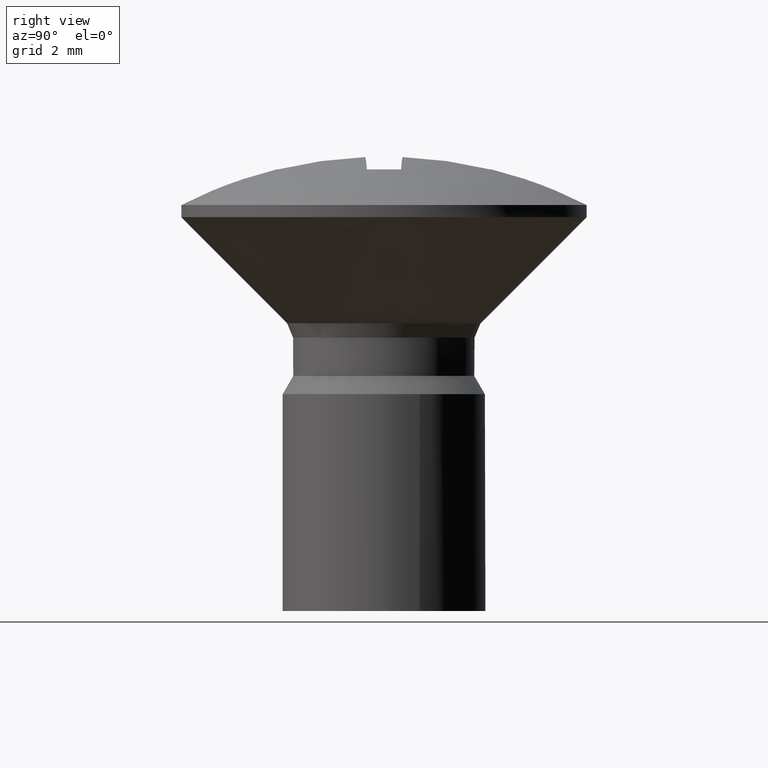
[diagram: clean part render]
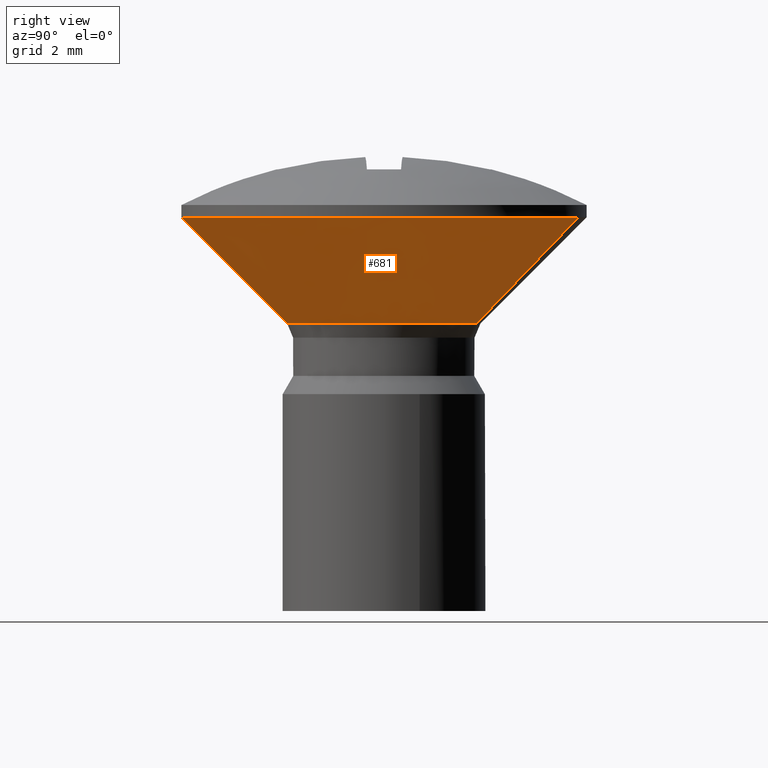
[diagram: same view with one face highlighted and labeled with its STEP entity id]
A machine part, right view. The second image highlights one B-rep face of the part: STEP entity #681.
In plain terms, the highlighted face is a freeform B-spline surface patch.
Its self-contained STEP definition (entity closure, byte-faithful):
#564=CARTESIAN_POINT('',(-0.911770694464833,-2.134477389025494,-2.978837500011659));
#565=CARTESIAN_POINT('',(-0.788129322014859,-2.187292462449518,-2.978837500011660));
#566=CARTESIAN_POINT('',(-0.659216655975181,-2.225478133802009,-2.978837500011660));
#567=CARTESIAN_POINT('',(1.566261477826829,-2.884694789777191,-2.978837500011660));
#568=CARTESIAN_POINT('',(2.225478133802009,-0.659216655975181,-2.978837500011660));
#569=CARTESIAN_POINT('',(2.884694789777191,1.566261477826829,-2.978837500011660));
#570=CARTESIAN_POINT('',(0.659216655975181,2.225478133802009,-2.978837500011660));
#571=CARTESIAN_POINT('',(-1.990434519983686,-4.659655660170878,-0.233029062499713));
#572=CARTESIAN_POINT('',(-1.720520102557671,-4.774953230005968,-0.233029062499713));
#573=CARTESIAN_POINT('',(-1.439098225208224,-4.858314187854438,-0.233029062499713));
#574=CARTESIAN_POINT('',(3.419215962646214,-6.297412413062659,-0.233029062499713));
#575=CARTESIAN_POINT('',(4.858314187854438,-1.439098225208224,-0.233029062499713));
#576=CARTESIAN_POINT('',(6.297412413062659,3.419215962646214,-0.233029062499713));
#577=CARTESIAN_POINT('',(1.439098225208224,4.858314187854438,-0.233029062499713));
#585=(BOUNDED_SURFACE()B_SPLINE_SURFACE(2,1,((#564,#571),(#565,#572),(#566,#573),(#567,#574),(#568,#575),(#569,#576),(#570,#577)),.UNSPECIFIED.,.F.,.F.,.U.)B_SPLINE_SURFACE_WITH_KNOTS((3,2,2,3),(2,2),(0.0,0.671618926043262,9.066855501584019,17.462092077124780),(0.0,3.883233823124686),.UNSPECIFIED.)GEOMETRIC_REPRESENTATION_ITEM()RATIONAL_B_SPLINE_SURFACE(((0.956886118190660,0.956886118190660),(0.976568542494924,0.976568542494924),(1.0,1.0),(0.707106781186548,0.707106781186548),(1.0,1.0),(0.707106781186548,0.707106781186548),(1.0,1.0)))REPRESENTATION_ITEM('')SURFACE());
#586=CARTESIAN_POINT('',(0.305241107756688,-4.990674089352352,-0.300000000000051));
#587=VERTEX_POINT('',#586);
#588=CARTESIAN_POINT('',(-1.964125646197499,-4.598065946238224,-0.299999999999369));
#589=VERTEX_POINT('',#588);
#590=CARTESIAN_POINT('',(0.305241107756688,-4.990674089352352,-0.300000000000051));
#591=CARTESIAN_POINT('',(0.152763019305179,-5.0,-0.300000000000004));
#592=CARTESIAN_POINT('',(0.0,-5.0,-0.300000000000004));
#593=CARTESIAN_POINT('',(-1.023188242926425,-5.0,-0.300000000000005));
#594=CARTESIAN_POINT('',(-1.964125646197498,-4.598065946238224,-0.299999999999369));
#602=(BOUNDED_CURVE()B_SPLINE_CURVE(2,(#590,#591,#592,#593,#594),.UNSPECIFIED.,.F.,.U.)B_SPLINE_CURVE_WITH_KNOTS((3,2,3),(0.739333017211535,0.750000000000000,0.816696862373133),.UNSPECIFIED.)CURVE()GEOMETRIC_REPRESENTATION_ITEM()RATIONAL_B_SPLINE_CURVE((0.976072159483476,0.987502852304236,1.0,0.921859765179100,0.885413198259432))REPRESENTATION_ITEM(''));
#603=EDGE_CURVE('',#587,#589,#602,.T.);
#604=ORIENTED_EDGE('',*,*,#603,.T.);
#605=CARTESIAN_POINT('',(-0.937436761249842,-2.194563757591395,-2.913501506924783));
#606=VERTEX_POINT('',#605);
#607=CARTESIAN_POINT('',(-0.937436761249842,-2.194563757591395,-2.913501506924783));
#608=CARTESIAN_POINT('',(-1.964125646197499,-4.598065946238224,-0.299999999999369));
#609=QUASI_UNIFORM_CURVE('',1,(#607,#608),.UNSPECIFIED.,.F.,.U.);
#610=EDGE_CURVE('',#606,#589,#609,.T.);
#611=ORIENTED_EDGE('',*,*,#610,.F.);
#612=CARTESIAN_POINT('',(2.386400000000000,0.0,-2.913500000000000));
#613=VERTEX_POINT('',#612);
#614=CARTESIAN_POINT('',(2.386400000000000,0.0,-2.913500000000000));
#615=CARTESIAN_POINT('',(2.386400195427569,-2.386399542498997,-2.913500497473757));
#616=CARTESIAN_POINT('',(0.000000491417621,-2.386398849578612,-2.913501250935946));
#617=CARTESIAN_POINT('',(-0.488346429423662,-2.386398707781101,-2.913501405122580));
#618=CARTESIAN_POINT('',(-0.937436761249842,-2.194563757591395,-2.913501506924784));
#626=(BOUNDED_CURVE()B_SPLINE_CURVE(2,(#614,#615,#616,#617,#618),.UNSPECIFIED.,.F.,.U.)B_SPLINE_CURVE_WITH_KNOTS((3,2,3),(0.500000000000000,0.750000000000000,0.816696824202396),.UNSPECIFIED.)CURVE()GEOMETRIC_REPRESENTATION_ITEM()RATIONAL_B_SPLINE_CURVE((1.0,0.707106781186547,1.0,0.921859809898901,0.885413239976321))REPRESENTATION_ITEM(''));
#627=EDGE_CURVE('',#613,#606,#626,.T.);
#628=ORIENTED_EDGE('',*,*,#627,.F.);
#629=CARTESIAN_POINT('',(0.677774218621817,2.288127415285711,-2.913499999997815));
#630=VERTEX_POINT('',#629);
#631=CARTESIAN_POINT('',(0.677774218621817,2.288127415285711,-2.913499999997815));
#632=CARTESIAN_POINT('',(2.386400000000000,1.782009400966986,-2.913500000000000));
#633=CARTESIAN_POINT('',(2.386400000000000,0.0,-2.913500000000000));
#641=(BOUNDED_CURVE()B_SPLINE_CURVE(2,(#631,#632,#633),.UNSPECIFIED.,.F.,.U.)B_SPLINE_CURVE_WITH_KNOTS((3,3),(0.298358482937300,0.500000000000000),.UNSPECIFIED.)CURVE()GEOMETRIC_REPRESENTATION_ITEM()RATIONAL_B_SPLINE_CURVE((0.908607213376070,0.763762268084312,1.0))REPRESENTATION_ITEM(''));
#642=EDGE_CURVE('',#630,#613,#641,.T.);
#643=ORIENTED_EDGE('',*,*,#642,.F.);
#644=CARTESIAN_POINT('',(1.420076723529358,4.794098674339171,-0.299999999998956));
#645=VERTEX_POINT('',#644);
#646=CARTESIAN_POINT('',(0.677774218621817,2.288127415285711,-2.913499999997815));
#647=CARTESIAN_POINT('',(1.420076723529358,4.794098674339171,-0.299999999998956));
#648=QUASI_UNIFORM_CURVE('',1,(#646,#647),.UNSPECIFIED.,.F.,.U.);
#649=EDGE_CURVE('',#630,#645,#648,.T.);
#650=ORIENTED_EDGE('',*,*,#649,.T.);
#651=CARTESIAN_POINT('',(5.0,0.0,-0.300000000000004));
#652=VERTEX_POINT('',#651);
#653=CARTESIAN_POINT('',(1.420076723529358,4.794098674339172,-0.299999999998956));
#654=CARTESIAN_POINT('',(5.000000000000001,3.733677088903260,-0.300000000000004));
#655=CARTESIAN_POINT('',(5.0,0.0,-0.300000000000004));
#663=(BOUNDED_CURVE()B_SPLINE_CURVE(2,(#653,#654,#655),.UNSPECIFIED.,.F.,.U.)B_SPLINE_CURVE_WITH_KNOTS((3,3),(0.298358482935160,0.500000000000000),.UNSPECIFIED.)CURVE()GEOMETRIC_REPRESENTATION_ITEM()RATIONAL_B_SPLINE_CURVE((0.908607213379145,0.763762268081805,1.0))REPRESENTATION_ITEM(''));
#664=EDGE_CURVE('',#645,#652,#663,.T.);
#665=ORIENTED_EDGE('',*,*,#664,.T.);
#666=CARTESIAN_POINT('',(5.0,0.0,-0.300000000000004));
#667=CARTESIAN_POINT('',(5.0,-4.703531835768809,-0.300000000000004));
#668=CARTESIAN_POINT('',(0.305241107756688,-4.990674089352352,-0.300000000000051));
#676=(BOUNDED_CURVE()B_SPLINE_CURVE(2,(#666,#667,#668),.UNSPECIFIED.,.F.,.U.)B_SPLINE_CURVE_WITH_KNOTS((3,3),(0.500000000000000,0.739333017211535),.UNSPECIFIED.)CURVE()GEOMETRIC_REPRESENTATION_ITEM()RATIONAL_B_SPLINE_CURVE((1.0,0.719603928882312,0.976072159483476))REPRESENTATION_ITEM(''));
#677=EDGE_CURVE('',#652,#587,#676,.T.);
#678=ORIENTED_EDGE('',*,*,#677,.T.);
#679=EDGE_LOOP('',(#604,#611,#628,#643,#650,#665,#678));
#680=FACE_OUTER_BOUND('',#679,.T.);
#681=ADVANCED_FACE('',(#680),#585,.T.);